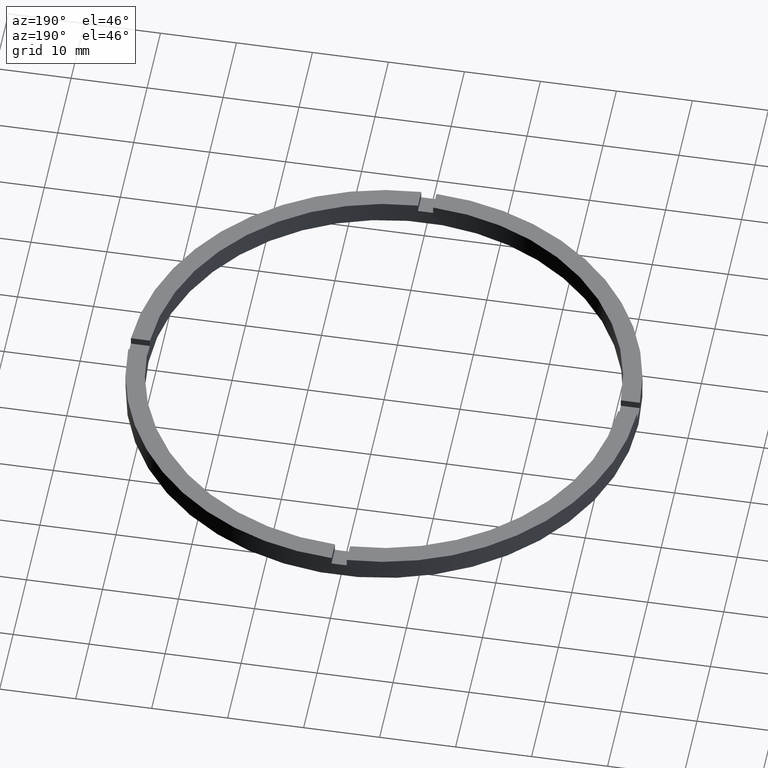
[diagram: clean part render]
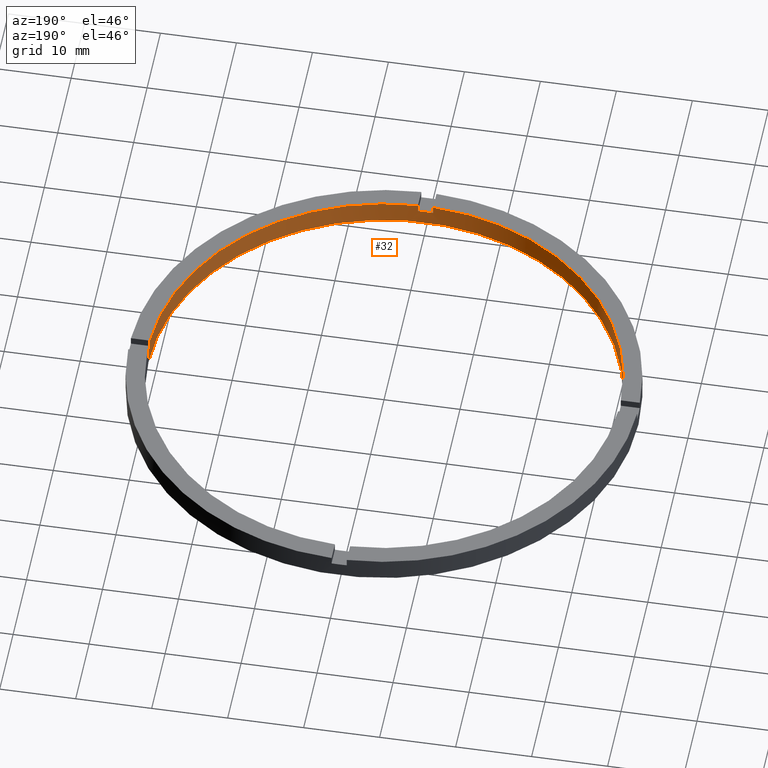
[diagram: same view with one face highlighted and labeled with its STEP entity id]
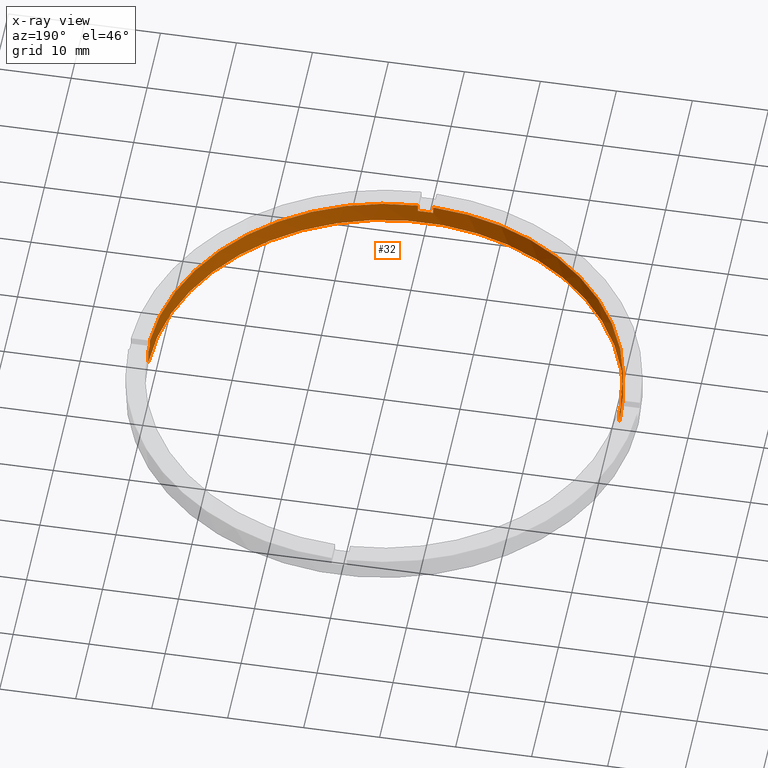
[diagram: x-ray of the same camera — body ghosted, the highlighted face saturated]
A machine part, auxiliary view. The second image highlights one B-rep face of the part: STEP entity #32.
The next image is the same camera in x-ray: the body ghosted, the highlighted face saturated — about 0% of this face is hidden behind the body in this view.
In plain terms, the highlighted cylindrical surface (partial cylindrical patch) has radius 31 mm, axis along (-0, -0, -1).
Its self-contained STEP definition (entity closure, byte-faithful):
#2 = EDGE_CURVE ( 'NONE', #64, #483, #418, .T. ) ;
#4 = ORIENTED_EDGE ( 'NONE', *, *, #566, .T. ) ;
#22 = DIRECTION ( 'NONE',  ( -0.000000000000000000, -0.000000000000000000, -1.000000000000000000 ) ) ;
#30 = AXIS2_PLACEMENT_3D ( 'NONE', #662, #22, #416 ) ;
#31 = EDGE_CURVE ( 'NONE', #58, #782, #718, .T. ) ;
#32 = ADVANCED_FACE ( 'NONE', ( #234 ), #230, .F. ) ;
#40 = CARTESIAN_POINT ( 'NONE',  ( -1.000000000000161204, -30.98386676965932907, 3.000000000000000000 ) ) ;
#48 = CARTESIAN_POINT ( 'NONE',  ( -30.98386676965933617, -1.000000000000025979, 3.000000000000000000 ) ) ;
#58 = VERTEX_POINT ( 'NONE', #510 ) ;
#59 = EDGE_LOOP ( 'NONE', ( #473, #449, #729, #527, #583, #220, #770, #716, #532, #204, #4, #176 ) ) ;
#60 = CARTESIAN_POINT ( 'NONE',  ( 31.00000000000000000, 3.796405077356795115E-15, 3.000000000000000000 ) ) ;
#64 = VERTEX_POINT ( 'NONE', #48 ) ;
#73 = LINE ( 'NONE', #556, #604 ) ;
#75 = CARTESIAN_POINT ( 'NONE',  ( 0.000000000000000000, 0.000000000000000000, 0.000000000000000000 ) ) ;
#80 = LINE ( 'NONE', #652, #93 ) ;
#81 = DIRECTION ( 'NONE',  ( 0.000000000000000000, 0.000000000000000000, 1.000000000000000000 ) ) ;
#88 = CIRCLE ( 'NONE', #293, 31.00000000000000000 ) ;
#89 = DIRECTION ( 'NONE',  ( 0.000000000000000000, 0.000000000000000000, 1.000000000000000000 ) ) ;
#92 = DIRECTION ( 'NONE',  ( 0.000000000000000000, 0.000000000000000000, 1.000000000000000000 ) ) ;
#93 = VECTOR ( 'NONE', #248, 1000.000000000000000 ) ;
#101 = CARTESIAN_POINT ( 'NONE',  ( 30.98386676965932907, -1.000000000000158540, 2.000000000000000000 ) ) ;
#102 = DIRECTION ( 'NONE',  ( -0.000000000000000000, 0.000000000000000000, 1.000000000000000000 ) ) ;
#122 = EDGE_CURVE ( 'NONE', #312, #591, #454, .T. ) ;
#125 = AXIS2_PLACEMENT_3D ( 'NONE', #522, #102, #555 ) ;
#127 = DIRECTION ( 'NONE',  ( -0.000000000000000000, -0.000000000000000000, -1.000000000000000000 ) ) ;
#128 = DIRECTION ( 'NONE',  ( -0.000000000000000000, -0.000000000000000000, -1.000000000000000000 ) ) ;
#138 = DIRECTION ( 'NONE',  ( 1.000000000000000000, 0.000000000000000000, 0.000000000000000000 ) ) ;
#164 = CARTESIAN_POINT ( 'NONE',  ( -1.000000000000161204, -30.98386676965932907, 2.000000000000000000 ) ) ;
#176 = ORIENTED_EDGE ( 'NONE', *, *, #406, .F. ) ;
#185 = EDGE_CURVE ( 'NONE', #422, #775, #476, .T. ) ;
#204 = ORIENTED_EDGE ( 'NONE', *, *, #587, .F. ) ;
#213 = CARTESIAN_POINT ( 'NONE',  ( 0.9999999999998389066, -30.98386676965933972, 3.000000000000000000 ) ) ;
#214 = DIRECTION ( 'NONE',  ( 1.000000000000000000, 0.000000000000000000, 0.000000000000000000 ) ) ;
#220 = ORIENTED_EDGE ( 'NONE', *, *, #437, .F. ) ;
#230 = CYLINDRICAL_SURFACE ( 'NONE', #30, 31.00000000000000000 ) ;
#232 = VECTOR ( 'NONE', #127, 1000.000000000000000 ) ;
#234 = FACE_OUTER_BOUND ( 'NONE', #59, .T. ) ;
#248 = DIRECTION ( 'NONE',  ( -0.000000000000000000, -0.000000000000000000, -1.000000000000000000 ) ) ;
#250 = AXIS2_PLACEMENT_3D ( 'NONE', #567, #562, #138 ) ;
#277 = CARTESIAN_POINT ( 'NONE',  ( 0.000000000000000000, 0.000000000000000000, 2.000000000000000000 ) ) ;
#280 = CARTESIAN_POINT ( 'NONE',  ( -31.00000000000000000, 0.000000000000000000, 0.000000000000000000 ) ) ;
#293 = AXIS2_PLACEMENT_3D ( 'NONE', #519, #423, #385 ) ;
#311 = CARTESIAN_POINT ( 'NONE',  ( 0.9999999999998389066, -30.98386676965933972, 2.000000000000000000 ) ) ;
#312 = VERTEX_POINT ( 'NONE', #542 ) ;
#329 = AXIS2_PLACEMENT_3D ( 'NONE', #75, #89, #771 ) ;
#330 = VECTOR ( 'NONE', #778, 1000.000000000000000 ) ;
#332 = VERTEX_POINT ( 'NONE', #498 ) ;
#348 = CIRCLE ( 'NONE', #329, 31.00000000000000000 ) ;
#357 = CIRCLE ( 'NONE', #250, 31.00000000000000000 ) ;
#372 = AXIS2_PLACEMENT_3D ( 'NONE', #277, #81, #514 ) ;
#385 = DIRECTION ( 'NONE',  ( 1.000000000000000000, 0.000000000000000000, 0.000000000000000000 ) ) ;
#395 = CARTESIAN_POINT ( 'NONE',  ( -30.98386676965933617, -1.000000000000025979, 2.000000000000000000 ) ) ;
#406 = EDGE_CURVE ( 'NONE', #518, #332, #606, .T. ) ;
#416 = DIRECTION ( 'NONE',  ( -1.000000000000000000, 0.000000000000000000, 0.000000000000000000 ) ) ;
#418 = CIRCLE ( 'NONE', #739, 31.00000000000000000 ) ;
#422 = VERTEX_POINT ( 'NONE', #164 ) ;
#423 = DIRECTION ( 'NONE',  ( 0.000000000000000000, 0.000000000000000000, 1.000000000000000000 ) ) ;
#435 = CARTESIAN_POINT ( 'NONE',  ( -1.000000000000161204, -30.98386676965932907, 3.000000000000000000 ) ) ;
#437 = EDGE_CURVE ( 'NONE', #64, #445, #80, .T. ) ;
#445 = VERTEX_POINT ( 'NONE', #395 ) ;
#449 = ORIENTED_EDGE ( 'NONE', *, *, #31, .T. ) ;
#454 = LINE ( 'NONE', #501, #753 ) ;
#473 = ORIENTED_EDGE ( 'NONE', *, *, #685, .T. ) ;
#476 = CIRCLE ( 'NONE', #125, 31.00000000000000000 ) ;
#477 = DIRECTION ( 'NONE',  ( 0.000000000000000000, 0.000000000000000000, 1.000000000000000000 ) ) ;
#483 = VERTEX_POINT ( 'NONE', #40 ) ;
#498 = CARTESIAN_POINT ( 'NONE',  ( 30.98386676965932907, -1.000000000000158540, 3.000000000000000000 ) ) ;
#501 = CARTESIAN_POINT ( 'NONE',  ( -31.00000000000000000, 0.000000000000000000, 3.000000000000000000 ) ) ;
#510 = CARTESIAN_POINT ( 'NONE',  ( 31.00000000000000000, 3.796405077356795115E-15, 2.000000000000000000 ) ) ;
#514 = DIRECTION ( 'NONE',  ( 1.000000000000000000, 0.000000000000000000, 0.000000000000000000 ) ) ;
#518 = VERTEX_POINT ( 'NONE', #101 ) ;
#519 = CARTESIAN_POINT ( 'NONE',  ( 0.000000000000000000, 0.000000000000000000, 3.000000000000000000 ) ) ;
#522 = CARTESIAN_POINT ( 'NONE',  ( 0.000000000000000000, 0.000000000000000000, 2.000000000000000000 ) ) ;
#527 = ORIENTED_EDGE ( 'NONE', *, *, #122, .F. ) ;
#532 = ORIENTED_EDGE ( 'NONE', *, *, #185, .T. ) ;
#536 = CARTESIAN_POINT ( 'NONE',  ( 30.98386676965932907, -1.000000000000158540, 3.000000000000000000 ) ) ;
#542 = CARTESIAN_POINT ( 'NONE',  ( -31.00000000000000000, 0.000000000000000000, 2.000000000000000000 ) ) ;
#555 = DIRECTION ( 'NONE',  ( 1.000000000000000000, 0.000000000000000000, 0.000000000000000000 ) ) ;
#556 = CARTESIAN_POINT ( 'NONE',  ( 0.9999999999998389066, -30.98386676965933972, 3.000000000000000000 ) ) ;
#562 = DIRECTION ( 'NONE',  ( 0.000000000000000000, 0.000000000000000000, 1.000000000000000000 ) ) ;
#566 = EDGE_CURVE ( 'NONE', #714, #332, #88, .T. ) ;
#567 = CARTESIAN_POINT ( 'NONE',  ( 0.000000000000000000, 0.000000000000000000, 2.000000000000000000 ) ) ;
#575 = EDGE_CURVE ( 'NONE', #312, #445, #588, .T. ) ;
#583 = ORIENTED_EDGE ( 'NONE', *, *, #575, .T. ) ;
#587 = EDGE_CURVE ( 'NONE', #714, #775, #73, .T. ) ;
#588 = CIRCLE ( 'NONE', #372, 31.00000000000000000 ) ;
#591 = VERTEX_POINT ( 'NONE', #280 ) ;
#600 = EDGE_CURVE ( 'NONE', #591, #782, #348, .T. ) ;
#601 = VECTOR ( 'NONE', #477, 1000.000000000000000 ) ;
#603 = DIRECTION ( 'NONE',  ( -0.000000000000000000, -0.000000000000000000, -1.000000000000000000 ) ) ;
#604 = VECTOR ( 'NONE', #128, 1000.000000000000000 ) ;
#606 = LINE ( 'NONE', #536, #601 ) ;
#616 = LINE ( 'NONE', #435, #330 ) ;
#618 = CARTESIAN_POINT ( 'NONE',  ( 0.000000000000000000, 0.000000000000000000, 3.000000000000000000 ) ) ;
#652 = CARTESIAN_POINT ( 'NONE',  ( -30.98386676965933617, -1.000000000000025979, 3.000000000000000000 ) ) ;
#662 = CARTESIAN_POINT ( 'NONE',  ( 0.000000000000000000, 0.000000000000000000, 3.000000000000000000 ) ) ;
#685 = EDGE_CURVE ( 'NONE', #518, #58, #357, .T. ) ;
#686 = CARTESIAN_POINT ( 'NONE',  ( 31.00000000000000000, 3.796405077356795115E-15, 0.000000000000000000 ) ) ;
#697 = EDGE_CURVE ( 'NONE', #422, #483, #616, .T. ) ;
#714 = VERTEX_POINT ( 'NONE', #213 ) ;
#716 = ORIENTED_EDGE ( 'NONE', *, *, #697, .F. ) ;
#718 = LINE ( 'NONE', #60, #232 ) ;
#729 = ORIENTED_EDGE ( 'NONE', *, *, #600, .F. ) ;
#739 = AXIS2_PLACEMENT_3D ( 'NONE', #618, #92, #214 ) ;
#753 = VECTOR ( 'NONE', #603, 1000.000000000000000 ) ;
#770 = ORIENTED_EDGE ( 'NONE', *, *, #2, .T. ) ;
#771 = DIRECTION ( 'NONE',  ( 1.000000000000000000, 0.000000000000000000, 0.000000000000000000 ) ) ;
#775 = VERTEX_POINT ( 'NONE', #311 ) ;
#778 = DIRECTION ( 'NONE',  ( 0.000000000000000000, 0.000000000000000000, 1.000000000000000000 ) ) ;
#782 = VERTEX_POINT ( 'NONE', #686 ) ;